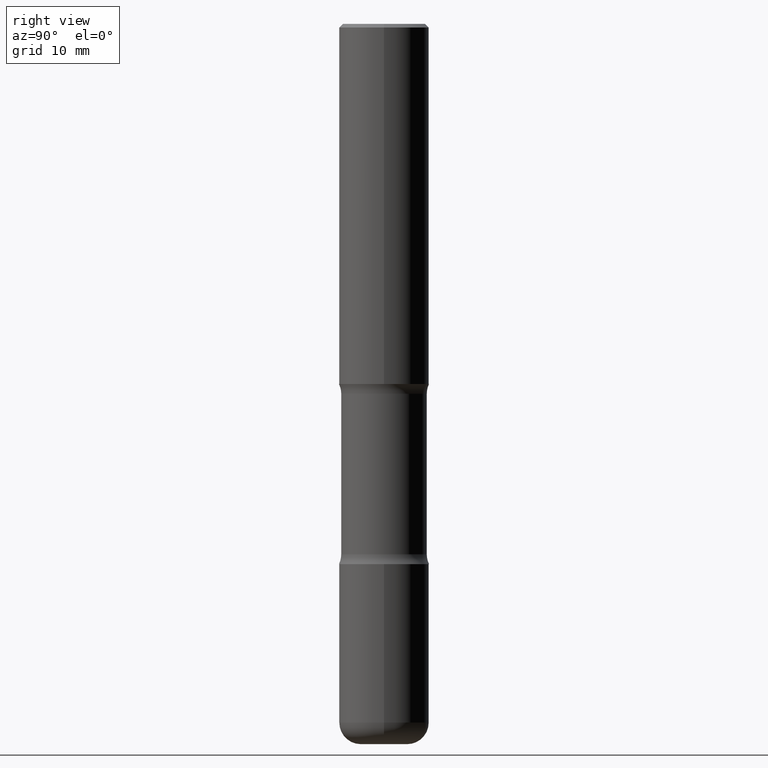
[diagram: clean part render]
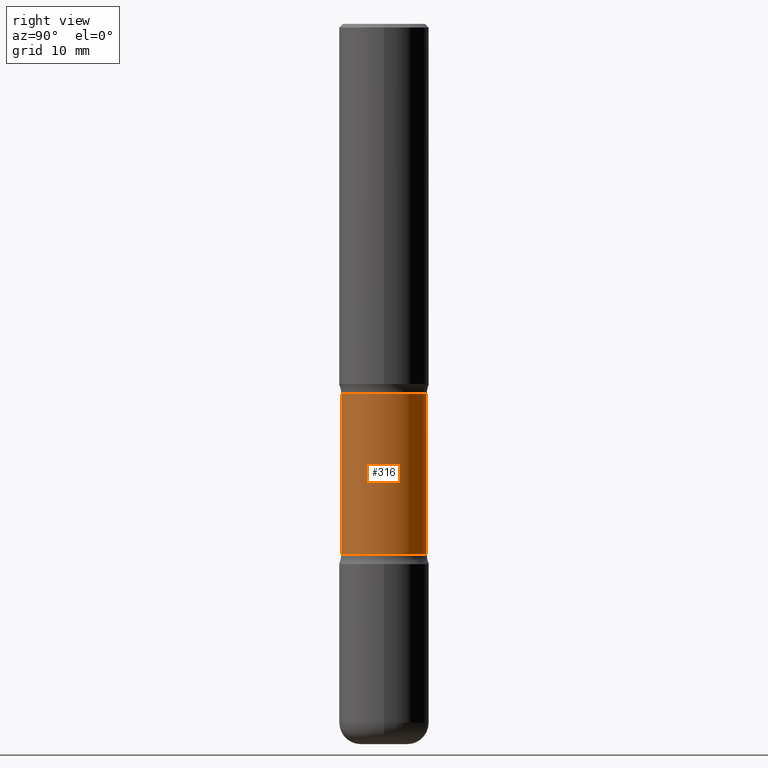
[diagram: same view with one face highlighted and labeled with its STEP entity id]
A machine part, right view. The second image highlights one B-rep face of the part: STEP entity #316.
In plain terms, the highlighted cylindrical surface (partial cylindrical patch) has radius 6.0325 mm, axis along (0, -0, -1).
Its self-contained STEP definition (entity closure, byte-faithful):
#3 = DIRECTION ( 'NONE',  ( 2.530378452311521502E-29, -3.369885892833230986E-15, -1.000000000000000000 ) ) ;
#21 = ORIENTED_EDGE ( 'NONE', *, *, #403, .F. ) ;
#28 = VERTEX_POINT ( 'NONE', #130 ) ;
#50 = CARTESIAN_POINT ( 'NONE',  ( -1.672246386956739071E-15, -0.2375000000000103417, -2.945513763205740876 ) ) ;
#58 = CARTESIAN_POINT ( 'NONE',  ( -1.672246386956763723E-15, -0.2375000000000074274, -2.054486236794258236 ) ) ;
#67 = DIRECTION ( 'NONE',  ( 6.982962677686265133E-15, 1.000000000000000000, -2.300503573612010239E-15 ) ) ;
#69 = VERTEX_POINT ( 'NONE', #58 ) ;
#76 = CIRCLE ( 'NONE', #202, 0.2375000000000001277 ) ;
#79 = DIRECTION ( 'NONE',  ( 2.530378452311521502E-29, -3.369885892833230986E-15, -1.000000000000000000 ) ) ;
#101 = AXIS2_PLACEMENT_3D ( 'NONE', #544, #155, #67 ) ;
#127 = CARTESIAN_POINT ( 'NONE',  ( 1.658453635950560525E-15, 0.2374999999999897748, -2.945513763205741764 ) ) ;
#130 = CARTESIAN_POINT ( 'NONE',  ( 1.658453635950538436E-15, 0.2374999999999928557, -2.054486236794259568 ) ) ;
#137 = LINE ( 'NONE', #304, #346 ) ;
#151 = CYLINDRICAL_SURFACE ( 'NONE', #337, 0.2375000000000000999 ) ;
#155 = DIRECTION ( 'NONE',  ( 2.530378452311521502E-29, -3.369885892833230986E-15, -1.000000000000000000 ) ) ;
#187 = ORIENTED_EDGE ( 'NONE', *, *, #218, .T. ) ;
#192 = ORIENTED_EDGE ( 'NONE', *, *, #309, .F. ) ;
#193 = VECTOR ( 'NONE', #559, 39.37007874015748143 ) ;
#202 = AXIS2_PLACEMENT_3D ( 'NONE', #433, #3, #515 ) ;
#218 = EDGE_CURVE ( 'NONE', #69, #536, #137, .T. ) ;
#237 = ORIENTED_EDGE ( 'NONE', *, *, #479, .T. ) ;
#241 = FACE_OUTER_BOUND ( 'NONE', #450, .T. ) ;
#266 = DIRECTION ( 'NONE',  ( 2.530378452311521502E-29, -3.369885892833230592E-15, -1.000000000000000000 ) ) ;
#276 = VERTEX_POINT ( 'NONE', #127 ) ;
#304 = CARTESIAN_POINT ( 'NONE',  ( -1.629368274470640415E-15, -0.2375000000000139222, -3.999999999999999556 ) ) ;
#305 = LINE ( 'NONE', #483, #193 ) ;
#309 = EDGE_CURVE ( 'NONE', #276, #536, #551, .T. ) ;
#316 = ADVANCED_FACE ( 'NONE', ( #241 ), #151, .T. ) ;
#337 = AXIS2_PLACEMENT_3D ( 'NONE', #462, #79, #372 ) ;
#346 = VECTOR ( 'NONE', #266, 39.37007874015748143 ) ;
#372 = DIRECTION ( 'NONE',  ( 6.982962677686265133E-15, 1.000000000000000000, -2.300503573612010239E-15 ) ) ;
#403 = EDGE_CURVE ( 'NONE', #28, #276, #305, .T. ) ;
#433 = CARTESIAN_POINT ( 'NONE',  ( 4.943898765775623630E-29, -7.288170524422749615E-15, -2.054486236794258680 ) ) ;
#450 = EDGE_LOOP ( 'NONE', ( #237, #187, #192, #21 ) ) ;
#462 = CARTESIAN_POINT ( 'NONE',  ( 9.866784870866931853E-29, -1.384432990936266734E-14, -4.000000000000000000 ) ) ;
#479 = EDGE_CURVE ( 'NONE', #28, #69, #76, .T. ) ;
#483 = CARTESIAN_POINT ( 'NONE',  ( 1.658453635950587543E-15, 0.2374999999999862776, -4.000000000000000888 ) ) ;
#515 = DIRECTION ( 'NONE',  ( 6.982962677686265133E-15, 1.000000000000000000, -3.450755360418014766E-15 ) ) ;
#536 = VERTEX_POINT ( 'NONE', #50 ) ;
#544 = CARTESIAN_POINT ( 'NONE',  ( 7.198535619023675570E-29, -1.029083161580289368E-14, -2.945513763205741320 ) ) ;
#551 = CIRCLE ( 'NONE', #101, 0.2375000000000000722 ) ;
#559 = DIRECTION ( 'NONE',  ( 2.530378452311521502E-29, -3.369885892833230592E-15, -1.000000000000000000 ) ) ;